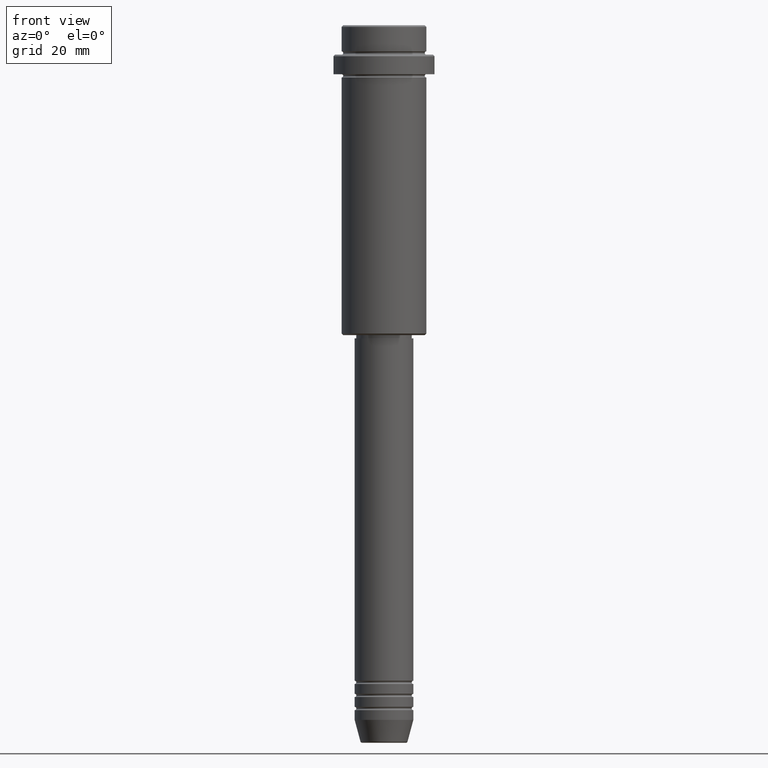
[diagram: clean part render]
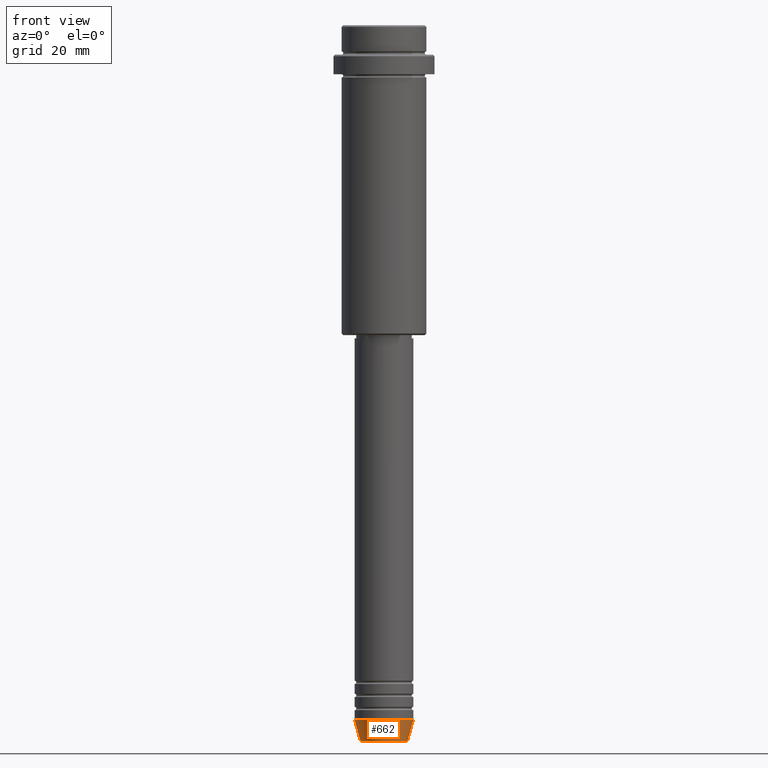
[diagram: same view with one face highlighted and labeled with its STEP entity id]
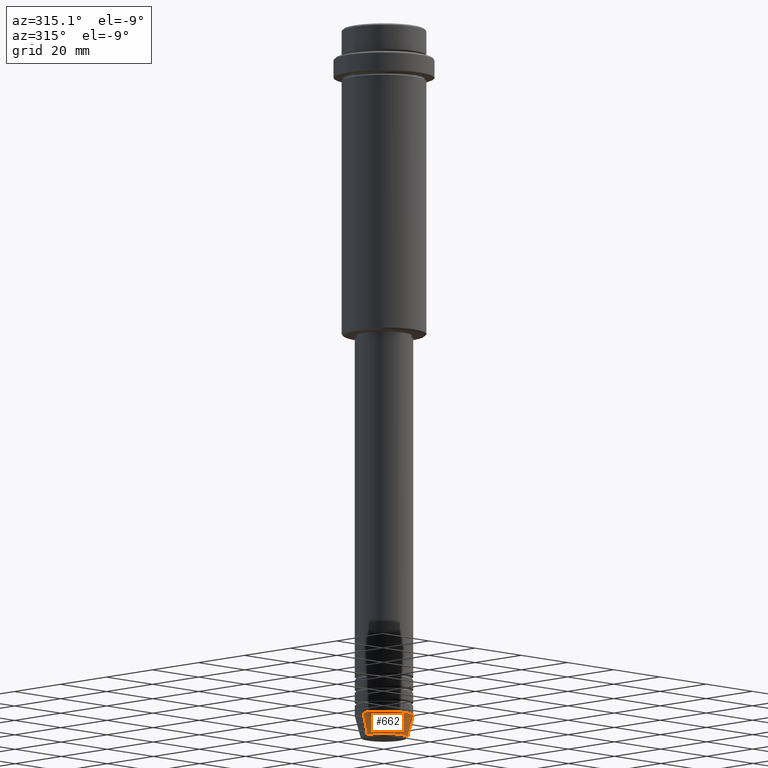
[diagram: same view with one face highlighted and labeled with its STEP entity id]
A machine part, front view. The second image highlights one B-rep face of the part: STEP entity #662.
A second angle (auxiliary view) of the same face is appended — the face is thin or edge-on in the first view.
In plain terms, the highlighted conical surface has half-angle 15 deg.
Its self-contained STEP definition (entity closure, byte-faithful):
#94 = CIRCLE ( 'NONE', #1374, 7.223655072137188604 ) ;
#198 = CARTESIAN_POINT ( 'NONE',  ( -9.000000000000000000, 1.102182119232617714E-15, -212.9999999999999716 ) ) ;
#275 = EDGE_CURVE ( 'NONE', #835, #1181, #1026, .T. ) ;
#286 = CARTESIAN_POINT ( 'NONE',  ( 0.000000000000000000, 0.000000000000000000, -219.6294095225512422 ) ) ;
#314 = EDGE_CURVE ( 'NONE', #677, #1314, #1387, .T. ) ;
#374 = CARTESIAN_POINT ( 'NONE',  ( 9.000000000000000000, 0.000000000000000000, -212.9999999999999716 ) ) ;
#384 = ORIENTED_EDGE ( 'NONE', *, *, #772, .T. ) ;
#393 = DIRECTION ( 'NONE',  ( -0.000000000000000000, -0.000000000000000000, 1.000000000000000000 ) ) ;
#415 = CONICAL_SURFACE ( 'NONE', #1121, 9.000000000000000000, 0.2617993877991500740 ) ;
#450 = DIRECTION ( 'NONE',  ( 1.000000000000000000, 0.000000000000000000, 0.000000000000000000 ) ) ;
#466 = CARTESIAN_POINT ( 'NONE',  ( -7.223655072137189492, 9.934123627281765110E-16, -219.6294095225512422 ) ) ;
#470 = CARTESIAN_POINT ( 'NONE',  ( 9.000000000000000000, 0.000000000000000000, -212.9999999999999716 ) ) ;
#492 = EDGE_CURVE ( 'NONE', #1314, #1181, #1000, .T. ) ;
#503 = VECTOR ( 'NONE', #1039, 1000.000000000000000 ) ;
#591 = CARTESIAN_POINT ( 'NONE',  ( 0.000000000000000000, 0.000000000000000000, -212.9999999999999716 ) ) ;
#601 = DIRECTION ( 'NONE',  ( 1.000000000000000000, 0.000000000000000000, 0.000000000000000000 ) ) ;
#607 = DIRECTION ( 'NONE',  ( 1.000000000000000000, 0.000000000000000000, 0.000000000000000000 ) ) ;
#613 = DIRECTION ( 'NONE',  ( -0.2588190451025213501, 3.169619151431772337E-17, 0.9659258262890680902 ) ) ;
#662 = ADVANCED_FACE ( 'NONE', ( #721 ), #415, .T. ) ;
#677 = VERTEX_POINT ( 'NONE', #466 ) ;
#721 = FACE_OUTER_BOUND ( 'NONE', #750, .T. ) ;
#735 = ORIENTED_EDGE ( 'NONE', *, *, #275, .T. ) ;
#750 = EDGE_LOOP ( 'NONE', ( #1199, #384, #735, #1104 ) ) ;
#761 = DIRECTION ( 'NONE',  ( -0.000000000000000000, -0.000000000000000000, 1.000000000000000000 ) ) ;
#772 = EDGE_CURVE ( 'NONE', #677, #835, #94, .T. ) ;
#835 = VERTEX_POINT ( 'NONE', #1064 ) ;
#889 = CARTESIAN_POINT ( 'NONE',  ( 0.000000000000000000, 0.000000000000000000, -212.9999999999999716 ) ) ;
#1000 = CIRCLE ( 'NONE', #1230, 9.000000000000000000 ) ;
#1026 = LINE ( 'NONE', #374, #503 ) ;
#1039 = DIRECTION ( 'NONE',  ( 0.2588190451025213501, 0.000000000000000000, 0.9659258262890680902 ) ) ;
#1064 = CARTESIAN_POINT ( 'NONE',  ( 7.223655072137188604, 0.000000000000000000, -219.6294095225512422 ) ) ;
#1104 = ORIENTED_EDGE ( 'NONE', *, *, #492, .F. ) ;
#1119 = VECTOR ( 'NONE', #613, 1000.000000000000000 ) ;
#1121 = AXIS2_PLACEMENT_3D ( 'NONE', #591, #1352, #601 ) ;
#1181 = VERTEX_POINT ( 'NONE', #470 ) ;
#1199 = ORIENTED_EDGE ( 'NONE', *, *, #314, .F. ) ;
#1230 = AXIS2_PLACEMENT_3D ( 'NONE', #889, #761, #450 ) ;
#1314 = VERTEX_POINT ( 'NONE', #1399 ) ;
#1352 = DIRECTION ( 'NONE',  ( -0.000000000000000000, -0.000000000000000000, 1.000000000000000000 ) ) ;
#1374 = AXIS2_PLACEMENT_3D ( 'NONE', #286, #393, #607 ) ;
#1387 = LINE ( 'NONE', #198, #1119 ) ;
#1399 = CARTESIAN_POINT ( 'NONE',  ( -9.000000000000000000, 1.102182119232617714E-15, -212.9999999999999716 ) ) ;